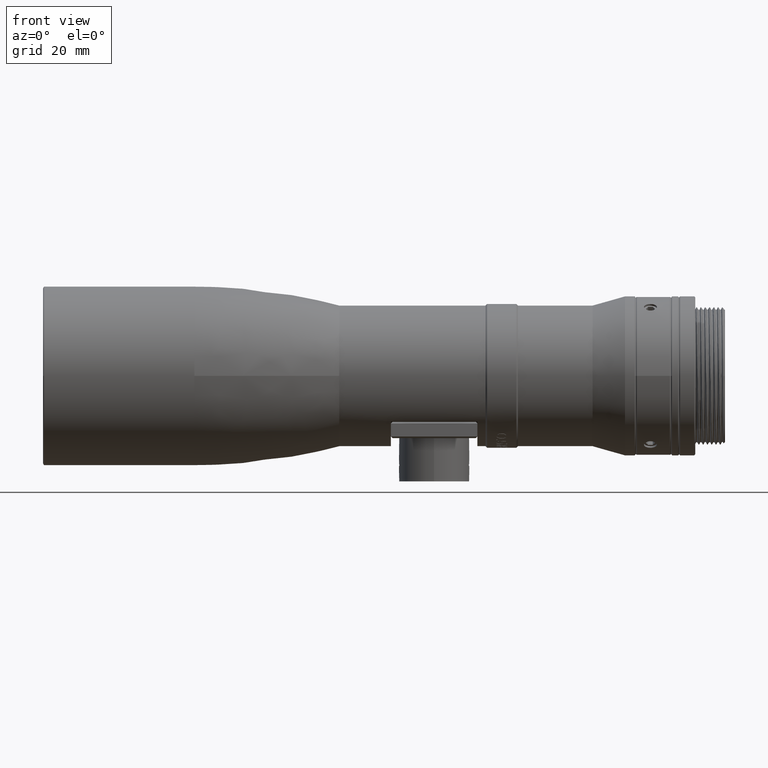
[diagram: clean part render]
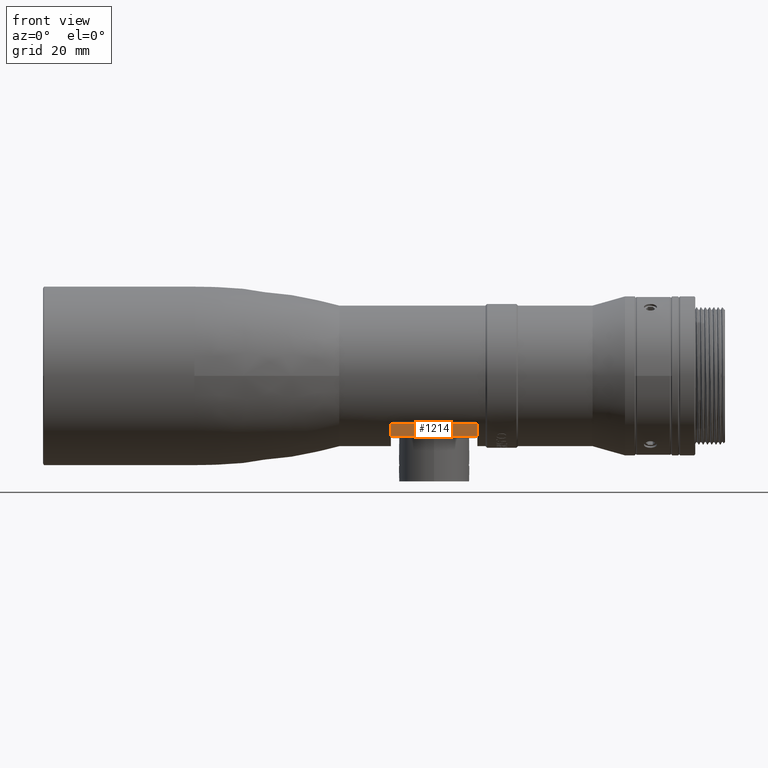
[diagram: same view with one face highlighted and labeled with its STEP entity id]
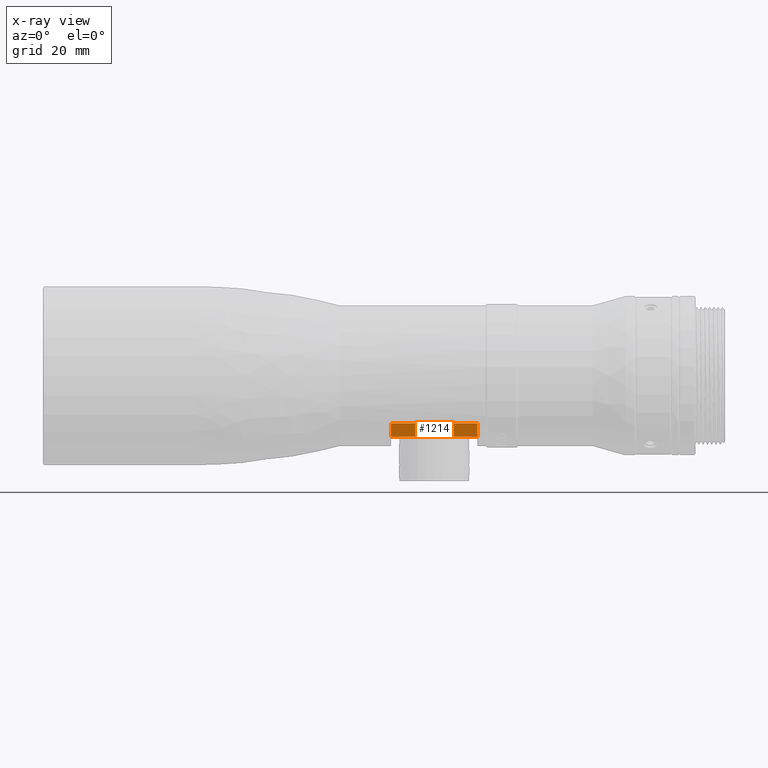
[diagram: x-ray of the same camera — body ghosted, the highlighted face saturated]
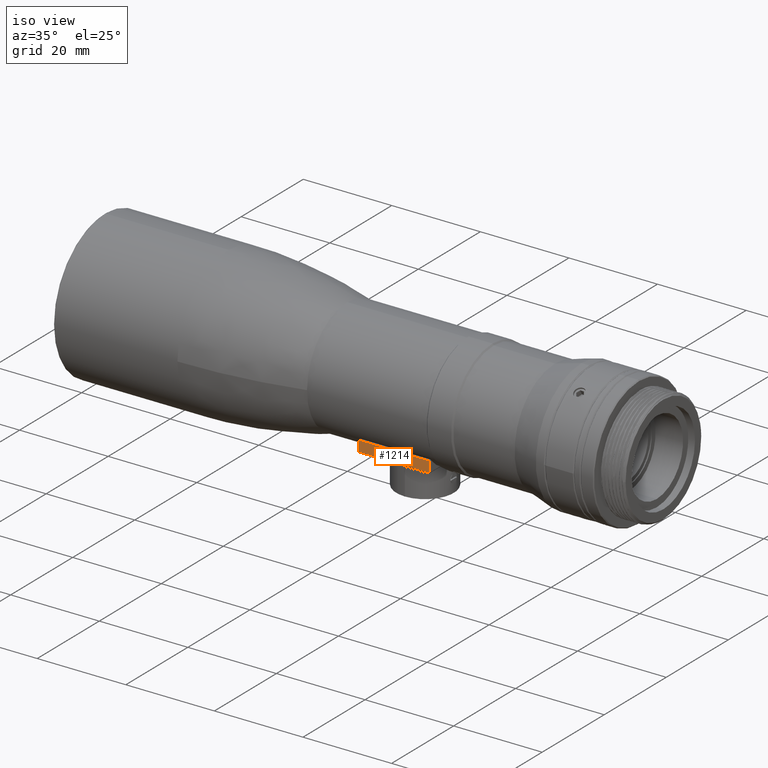
[diagram: same view with one face highlighted and labeled with its STEP entity id]
A machine part, front view. The second image highlights one B-rep face of the part: STEP entity #1214.
The next image is the same camera in x-ray: the body ghosted, the highlighted face saturated — about 0% of this face is hidden behind the body in this view.
A second angle (iso view) of the same face is appended — the face is thin or edge-on in the first view.
In plain terms, the highlighted planar face has unit normal (0, -1, 0).
Its self-contained STEP definition (entity closure, byte-faithful):
#34 = EDGE_LOOP ( 'NONE', ( #20331, #364, #5541, #11161 ) ) ;
#364 = ORIENTED_EDGE ( 'NONE', *, *, #13444, .F. ) ;
#1214 = ADVANCED_FACE ( 'NONE', ( #21452 ), #13464, .T. ) ;
#3651 = CARTESIAN_POINT ( 'NONE',  ( 9.549999999999998934, -9.999999999998948397, -8.800000000000000711 ) ) ;
#3766 = VECTOR ( 'NONE', #10361, 1000.000000000000000 ) ;
#4044 = VERTEX_POINT ( 'NONE', #20854 ) ;
#4975 = VERTEX_POINT ( 'NONE', #3651 ) ;
#5487 = LINE ( 'NONE', #30501, #5961 ) ;
#5541 = ORIENTED_EDGE ( 'NONE', *, *, #19502, .F. ) ;
#5959 = LINE ( 'NONE', #17897, #32340 ) ;
#5961 = VECTOR ( 'NONE', #21149, 1000.000000000000000 ) ;
#6470 = CARTESIAN_POINT ( 'NONE',  ( 25.55000000000000071, -10.00000000000000000, -11.19999999999999929 ) ) ;
#6603 = DIRECTION ( 'NONE',  ( 0.000000000000000000, 0.000000000000000000, -1.000000000000000000 ) ) ;
#6862 = EDGE_CURVE ( 'NONE', #4044, #4975, #10208, .T. ) ;
#7246 = LINE ( 'NONE', #10191, #22087 ) ;
#8238 = CARTESIAN_POINT ( 'NONE',  ( 17.55000000000000071, -9.999999999998598454, -8.800000000001400480 ) ) ;
#8896 = CARTESIAN_POINT ( 'NONE',  ( 25.87000000000000099, -10.00000000000000000, -8.751999999999998892 ) ) ;
#9838 = VERTEX_POINT ( 'NONE', #6470 ) ;
#10191 = CARTESIAN_POINT ( 'NONE',  ( 17.55000000000000071, -10.00000000000000000, -11.19999999999999929 ) ) ;
#10208 = LINE ( 'NONE', #8238, #3766 ) ;
#10258 = CARTESIAN_POINT ( 'NONE',  ( 9.549999999998810551, -10.00000000000000000, -11.20000000000108109 ) ) ;
#10361 = DIRECTION ( 'NONE',  ( -1.000000000000000000, 0.000000000000000000, 0.000000000000000000 ) ) ;
#11161 = ORIENTED_EDGE ( 'NONE', *, *, #29912, .F. ) ;
#13444 = EDGE_CURVE ( 'NONE', #22753, #4975, #5487, .T. ) ;
#13464 = PLANE ( 'NONE',  #28174 ) ;
#17897 = CARTESIAN_POINT ( 'NONE',  ( 25.55000000000000071, -10.00000000000000000, -10.00000000000000000 ) ) ;
#19502 = EDGE_CURVE ( 'NONE', #9838, #22753, #7246, .T. ) ;
#20331 = ORIENTED_EDGE ( 'NONE', *, *, #6862, .T. ) ;
#20854 = CARTESIAN_POINT ( 'NONE',  ( 25.54999999999944649, -9.999999999998850697, -8.800000000002141221 ) ) ;
#21149 = DIRECTION ( 'NONE',  ( 0.000000000000000000, 0.000000000000000000, 1.000000000000000000 ) ) ;
#21452 = FACE_OUTER_BOUND ( 'NONE', #34, .T. ) ;
#22087 = VECTOR ( 'NONE', #27151, 1000.000000000000000 ) ;
#22753 = VERTEX_POINT ( 'NONE', #10258 ) ;
#27151 = DIRECTION ( 'NONE',  ( -1.000000000000000000, 0.000000000000000000, 0.000000000000000000 ) ) ;
#28011 = DIRECTION ( 'NONE',  ( 0.000000000000000000, 0.000000000000000000, -1.000000000000000000 ) ) ;
#28174 = AXIS2_PLACEMENT_3D ( 'NONE', #8896, #28981, #6603 ) ;
#28981 = DIRECTION ( 'NONE',  ( 0.000000000000000000, -1.000000000000000000, 0.000000000000000000 ) ) ;
#29912 = EDGE_CURVE ( 'NONE', #4044, #9838, #5959, .T. ) ;
#30501 = CARTESIAN_POINT ( 'NONE',  ( 9.549999999999998934, -10.00000000000000000, -10.00000000000000000 ) ) ;
#32340 = VECTOR ( 'NONE', #28011, 1000.000000000000000 ) ;